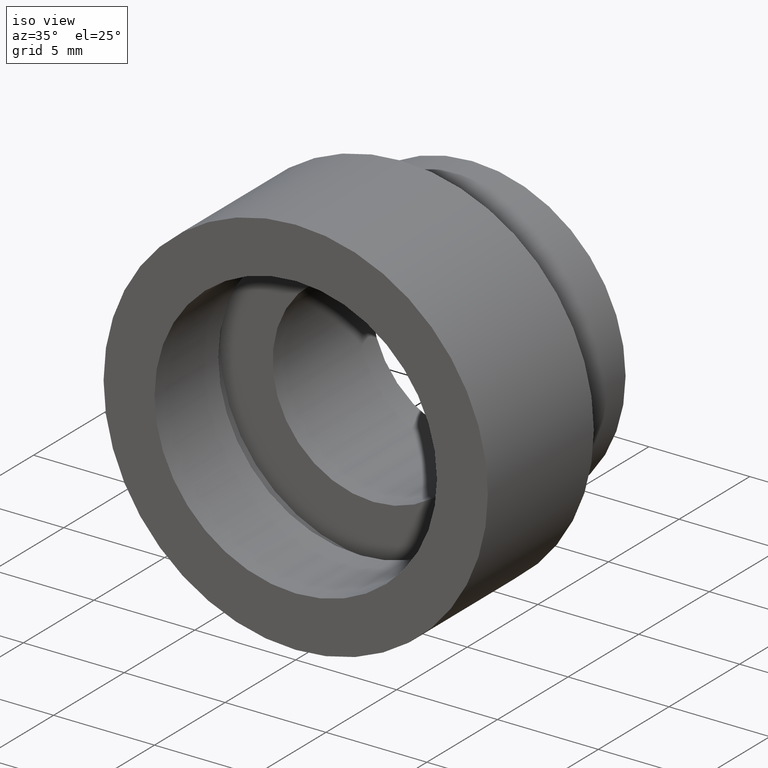
[diagram: clean part render]
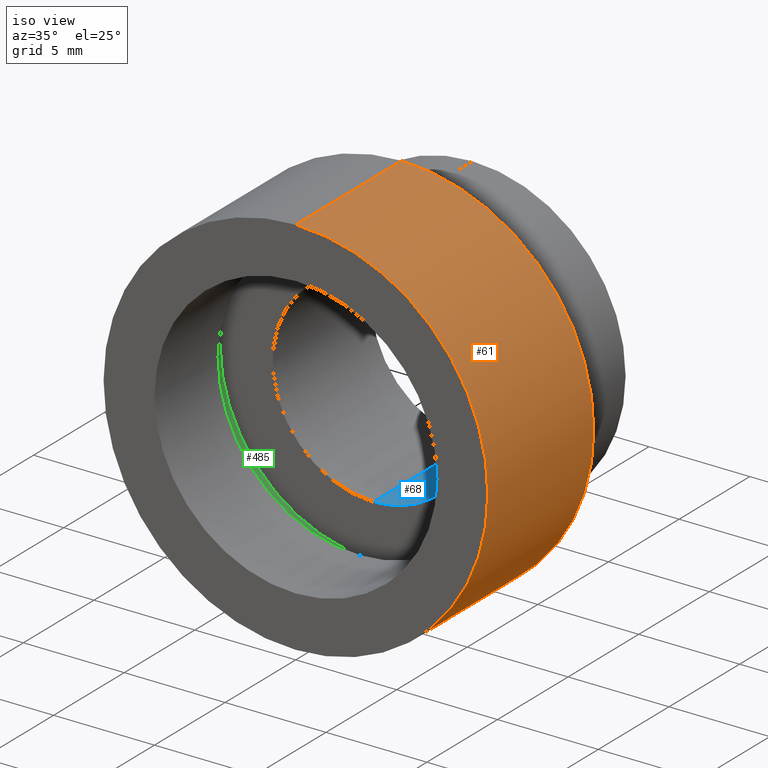
[diagram: same view with three faces highlighted in distinct colors, each labeled with its STEP entity id]
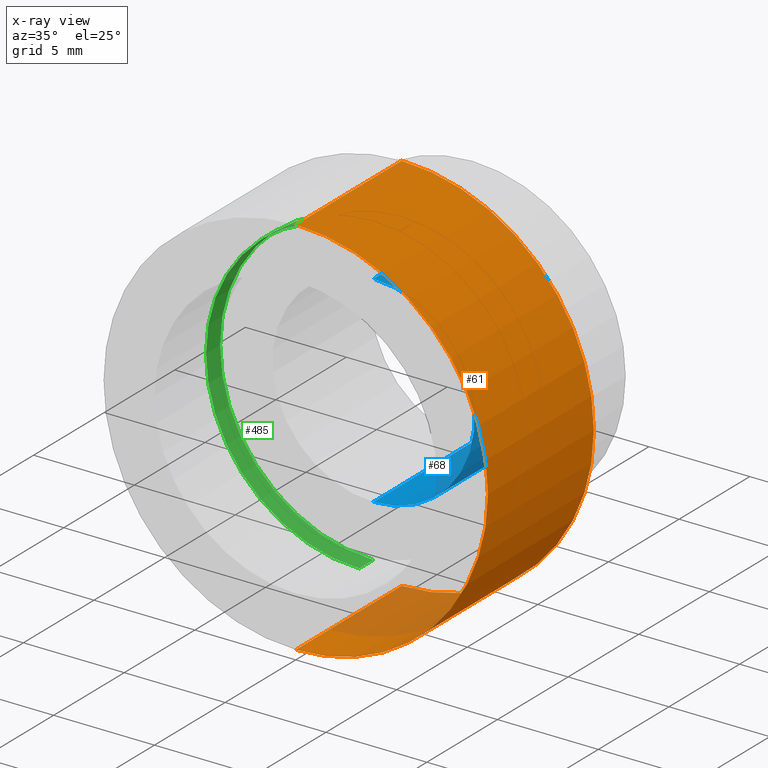
[diagram: x-ray of the same camera — body ghosted, the three highlighted faces saturated]
A machine part, iso view with three faces highlighted in distinct colors.
The next image is the same camera in x-ray (body ghosted, the three faces saturated) — at least one of them is partly hidden behind the body in this view.
Their STEP definitions:

[orange] entity #61 — the highlighted cylindrical surface (partial cylindrical patch) has radius 9.525 mm, axis along (-0, 1, -0).
#4 = DIRECTION ( 'NONE',  ( -0.0000000000000000000, 1.000000000000000000, -0.0000000000000000000 ) ) ;
#41 = DIRECTION ( 'NONE',  ( -0.0000000000000000000, 1.000000000000000000, -0.0000000000000000000 ) ) ;
#53 = CIRCLE ( 'NONE', #613, 9.525000000000019900 ) ;
#61 = ADVANCED_FACE ( 'NONE', ( #546 ), #322, .T. ) ;
#73 = DIRECTION ( 'NONE',  ( -0.0000000000000000000, 1.000000000000000000, -0.0000000000000000000 ) ) ;
#103 = EDGE_CURVE ( 'NONE', #444, #151, #300, .T. ) ;
#106 = DIRECTION ( 'NONE',  ( -0.0000000000000000000, 1.000000000000000000, -0.0000000000000000000 ) ) ;
#111 = VERTEX_POINT ( 'NONE', #317 ) ;
#117 = EDGE_LOOP ( 'NONE', ( #159, #277, #311, #478 ) ) ;
#127 = CARTESIAN_POINT ( 'NONE',  ( 0.0000000000000000000, 7.499999999999978700, 9.525000000000019900 ) ) ;
#136 = VERTEX_POINT ( 'NONE', #513 ) ;
#148 = CARTESIAN_POINT ( 'NONE',  ( 0.0000000000000000000, 7.499999999999978700, 0.0000000000000000000 ) ) ;
#151 = VERTEX_POINT ( 'NONE', #127 ) ;
#159 = ORIENTED_EDGE ( 'NONE', *, *, #365, .T. ) ;
#199 = VECTOR ( 'NONE', #368, 1000.000000000000000 ) ;
#229 = CARTESIAN_POINT ( 'NONE',  ( 1.166476076187856400E-015, 161.3761669434274500, -9.525000000000019900 ) ) ;
#231 = EDGE_CURVE ( 'NONE', #111, #136, #320, .T. ) ;
#236 = DIRECTION ( 'NONE',  ( 0.0000000000000000000, 0.0000000000000000000, 1.000000000000000000 ) ) ;
#257 = CIRCLE ( 'NONE', #533, 9.525000000000019900 ) ;
#261 = DIRECTION ( 'NONE',  ( 0.0000000000000000000, 0.0000000000000000000, 1.000000000000000000 ) ) ;
#269 = CARTESIAN_POINT ( 'NONE',  ( 0.0000000000000000000, -2.775557561562891400E-014, 0.0000000000000000000 ) ) ;
#273 = DIRECTION ( 'NONE',  ( 0.0000000000000000000, 0.0000000000000000000, 1.000000000000000000 ) ) ;
#277 = ORIENTED_EDGE ( 'NONE', *, *, #231, .T. ) ;
#300 = LINE ( 'NONE', #566, #524 ) ;
#303 = EDGE_CURVE ( 'NONE', #151, #136, #53, .T. ) ;
#311 = ORIENTED_EDGE ( 'NONE', *, *, #303, .F. ) ;
#317 = CARTESIAN_POINT ( 'NONE',  ( 1.166476076187856400E-015, -2.775557561562891400E-014, -9.525000000000019900 ) ) ;
#320 = LINE ( 'NONE', #229, #199 ) ;
#322 = CYLINDRICAL_SURFACE ( 'NONE', #568, 9.525000000000019900 ) ;
#365 = EDGE_CURVE ( 'NONE', #444, #111, #257, .T. ) ;
#368 = DIRECTION ( 'NONE',  ( -0.0000000000000000000, 1.000000000000000000, -0.0000000000000000000 ) ) ;
#444 = VERTEX_POINT ( 'NONE', #493 ) ;
#478 = ORIENTED_EDGE ( 'NONE', *, *, #103, .F. ) ;
#493 = CARTESIAN_POINT ( 'NONE',  ( 0.0000000000000000000, -2.775557561562891400E-014, 9.525000000000019900 ) ) ;
#513 = CARTESIAN_POINT ( 'NONE',  ( 1.166476076187856400E-015, 7.499999999999978700, -9.525000000000019900 ) ) ;
#524 = VECTOR ( 'NONE', #41, 1000.000000000000000 ) ;
#533 = AXIS2_PLACEMENT_3D ( 'NONE', #269, #4, #273 ) ;
#546 = FACE_OUTER_BOUND ( 'NONE', #117, .T. ) ;
#566 = CARTESIAN_POINT ( 'NONE',  ( 0.0000000000000000000, 161.3761669434274500, 9.525000000000019900 ) ) ;
#568 = AXIS2_PLACEMENT_3D ( 'NONE', #611, #73, #261 ) ;
#611 = CARTESIAN_POINT ( 'NONE',  ( 0.0000000000000000000, 161.3761669434274500, 0.0000000000000000000 ) ) ;
#613 = AXIS2_PLACEMENT_3D ( 'NONE', #148, #106, #236 ) ;

[blue] entity #68 — the highlighted cylindrical surface (partial cylindrical patch) has radius 5 mm, axis along (-0, 1, -0).
#22 = AXIS2_PLACEMENT_3D ( 'NONE', #517, #315, #163 ) ;
#30 = ORIENTED_EDGE ( 'NONE', *, *, #66, .F. ) ;
#32 = AXIS2_PLACEMENT_3D ( 'NONE', #212, #89, #463 ) ;
#36 = CARTESIAN_POINT ( 'NONE',  ( 6.123233995736789000E-016, 5.499999999999976900, -5.000000000000019500 ) ) ;
#38 = VERTEX_POINT ( 'NONE', #160 ) ;
#66 = EDGE_CURVE ( 'NONE', #38, #122, #276, .T. ) ;
#68 = ADVANCED_FACE ( 'NONE', ( #331 ), #586, .F. ) ;
#79 = DIRECTION ( 'NONE',  ( -0.0000000000000000000, 1.000000000000000000, -0.0000000000000000000 ) ) ;
#89 = DIRECTION ( 'NONE',  ( -0.0000000000000000000, 1.000000000000000000, -0.0000000000000000000 ) ) ;
#108 = EDGE_CURVE ( 'NONE', #459, #556, #316, .T. ) ;
#118 = ORIENTED_EDGE ( 'NONE', *, *, #108, .T. ) ;
#122 = VERTEX_POINT ( 'NONE', #36 ) ;
#160 = CARTESIAN_POINT ( 'NONE',  ( 0.0000000000000000000, 5.499999999999976900, 5.000000000000019500 ) ) ;
#163 = DIRECTION ( 'NONE',  ( 0.0000000000000000000, 0.0000000000000000000, 1.000000000000000000 ) ) ;
#173 = LINE ( 'NONE', #624, #523 ) ;
#175 = LINE ( 'NONE', #587, #234 ) ;
#212 = CARTESIAN_POINT ( 'NONE',  ( 0.0000000000000000000, 161.3761669434274500, 0.0000000000000000000 ) ) ;
#214 = EDGE_CURVE ( 'NONE', #122, #556, #175, .T. ) ;
#220 = EDGE_CURVE ( 'NONE', #38, #459, #173, .T. ) ;
#234 = VECTOR ( 'NONE', #480, 1000.000000000000000 ) ;
#245 = CARTESIAN_POINT ( 'NONE',  ( 0.0000000000000000000, 12.49999999999998400, 5.000000000000019500 ) ) ;
#260 = ORIENTED_EDGE ( 'NONE', *, *, #214, .F. ) ;
#267 = DIRECTION ( 'NONE',  ( 0.0000000000000000000, 0.0000000000000000000, 1.000000000000000000 ) ) ;
#268 = ORIENTED_EDGE ( 'NONE', *, *, #220, .T. ) ;
#276 = CIRCLE ( 'NONE', #22, 5.000000000000019500 ) ;
#315 = DIRECTION ( 'NONE',  ( -0.0000000000000000000, 1.000000000000000000, -0.0000000000000000000 ) ) ;
#316 = CIRCLE ( 'NONE', #605, 5.000000000000019500 ) ;
#331 = FACE_OUTER_BOUND ( 'NONE', #489, .T. ) ;
#415 = DIRECTION ( 'NONE',  ( -0.0000000000000000000, 1.000000000000000000, -0.0000000000000000000 ) ) ;
#457 = CARTESIAN_POINT ( 'NONE',  ( 0.0000000000000000000, 12.49999999999998400, 0.0000000000000000000 ) ) ;
#459 = VERTEX_POINT ( 'NONE', #245 ) ;
#463 = DIRECTION ( 'NONE',  ( 0.0000000000000000000, 0.0000000000000000000, 1.000000000000000000 ) ) ;
#480 = DIRECTION ( 'NONE',  ( -0.0000000000000000000, 1.000000000000000000, -0.0000000000000000000 ) ) ;
#489 = EDGE_LOOP ( 'NONE', ( #260, #30, #268, #118 ) ) ;
#517 = CARTESIAN_POINT ( 'NONE',  ( 0.0000000000000000000, 5.499999999999976900, 0.0000000000000000000 ) ) ;
#523 = VECTOR ( 'NONE', #415, 1000.000000000000000 ) ;
#547 = CARTESIAN_POINT ( 'NONE',  ( 6.123233995736789000E-016, 12.49999999999998400, -5.000000000000019500 ) ) ;
#556 = VERTEX_POINT ( 'NONE', #547 ) ;
#586 = CYLINDRICAL_SURFACE ( 'NONE', #32, 5.000000000000019500 ) ;
#587 = CARTESIAN_POINT ( 'NONE',  ( 6.123233995736789000E-016, 161.3761669434274500, -5.000000000000019500 ) ) ;
#605 = AXIS2_PLACEMENT_3D ( 'NONE', #457, #79, #267 ) ;
#624 = CARTESIAN_POINT ( 'NONE',  ( 0.0000000000000000000, 161.3761669434274500, 5.000000000000019500 ) ) ;

[green] entity #485 — the highlighted cylindrical surface (partial cylindrical patch) has radius 7.6 mm, axis along (-0, 1, -0).
#15 = CIRCLE ( 'NONE', #502, 7.600000000000020100 ) ;
#44 = EDGE_CURVE ( 'NONE', #470, #505, #15, .T. ) ;
#101 = CARTESIAN_POINT ( 'NONE',  ( 0.0000000000000000000, 161.3761669434274500, 0.0000000000000000000 ) ) ;
#109 = DIRECTION ( 'NONE',  ( 0.0000000000000000000, 0.0000000000000000000, 1.000000000000000000 ) ) ;
#164 = LINE ( 'NONE', #336, #560 ) ;
#167 = ORIENTED_EDGE ( 'NONE', *, *, #266, .F. ) ;
#181 = CARTESIAN_POINT ( 'NONE',  ( 0.0000000000000000000, 5.499999999999976900, 7.600000000000020100 ) ) ;
#194 = AXIS2_PLACEMENT_3D ( 'NONE', #101, #329, #109 ) ;
#202 = DIRECTION ( 'NONE',  ( 0.0000000000000000000, 0.0000000000000000000, 1.000000000000000000 ) ) ;
#237 = ORIENTED_EDGE ( 'NONE', *, *, #589, .F. ) ;
#252 = CARTESIAN_POINT ( 'NONE',  ( 0.0000000000000000000, 5.499999999999976900, 0.0000000000000000000 ) ) ;
#253 = CARTESIAN_POINT ( 'NONE',  ( 0.0000000000000000000, 4.499999999999976000, 0.0000000000000000000 ) ) ;
#256 = CARTESIAN_POINT ( 'NONE',  ( 0.0000000000000000000, 4.499999999999976000, 7.600000000000019200 ) ) ;
#258 = EDGE_LOOP ( 'NONE', ( #237, #361, #537, #167 ) ) ;
#266 = EDGE_CURVE ( 'NONE', #609, #505, #164, .T. ) ;
#271 = CARTESIAN_POINT ( 'NONE',  ( 9.307315673519909100E-016, 161.3761669434274500, -7.600000000000020100 ) ) ;
#308 = LINE ( 'NONE', #271, #398 ) ;
#329 = DIRECTION ( 'NONE',  ( -0.0000000000000000000, 1.000000000000000000, -0.0000000000000000000 ) ) ;
#336 = CARTESIAN_POINT ( 'NONE',  ( 0.0000000000000000000, 161.3761669434274500, 7.600000000000020100 ) ) ;
#345 = FACE_OUTER_BOUND ( 'NONE', #258, .T. ) ;
#358 = EDGE_CURVE ( 'NONE', #600, #470, #308, .T. ) ;
#361 = ORIENTED_EDGE ( 'NONE', *, *, #358, .T. ) ;
#367 = DIRECTION ( 'NONE',  ( -0.0000000000000000000, 1.000000000000000000, -0.0000000000000000000 ) ) ;
#390 = CYLINDRICAL_SURFACE ( 'NONE', #194, 7.600000000000020100 ) ;
#398 = VECTOR ( 'NONE', #367, 1000.000000000000000 ) ;
#466 = DIRECTION ( 'NONE',  ( 0.0000000000000000000, 0.0000000000000000000, 1.000000000000000000 ) ) ;
#470 = VERTEX_POINT ( 'NONE', #582 ) ;
#485 = ADVANCED_FACE ( 'NONE', ( #345 ), #390, .F. ) ;
#499 = CARTESIAN_POINT ( 'NONE',  ( 9.307315673519907200E-016, 4.499999999999976000, -7.600000000000019200 ) ) ;
#502 = AXIS2_PLACEMENT_3D ( 'NONE', #252, #558, #466 ) ;
#503 = AXIS2_PLACEMENT_3D ( 'NONE', #253, #550, #202 ) ;
#505 = VERTEX_POINT ( 'NONE', #181 ) ;
#537 = ORIENTED_EDGE ( 'NONE', *, *, #44, .T. ) ;
#550 = DIRECTION ( 'NONE',  ( -0.0000000000000000000, 1.000000000000000000, -0.0000000000000000000 ) ) ;
#558 = DIRECTION ( 'NONE',  ( -0.0000000000000000000, 1.000000000000000000, -0.0000000000000000000 ) ) ;
#560 = VECTOR ( 'NONE', #592, 1000.000000000000000 ) ;
#582 = CARTESIAN_POINT ( 'NONE',  ( 9.307315673519909100E-016, 5.499999999999976900, -7.600000000000020100 ) ) ;
#589 = EDGE_CURVE ( 'NONE', #600, #609, #598, .T. ) ;
#592 = DIRECTION ( 'NONE',  ( -0.0000000000000000000, 1.000000000000000000, -0.0000000000000000000 ) ) ;
#598 = CIRCLE ( 'NONE', #503, 7.600000000000019200 ) ;
#600 = VERTEX_POINT ( 'NONE', #499 ) ;
#609 = VERTEX_POINT ( 'NONE', #256 ) ;